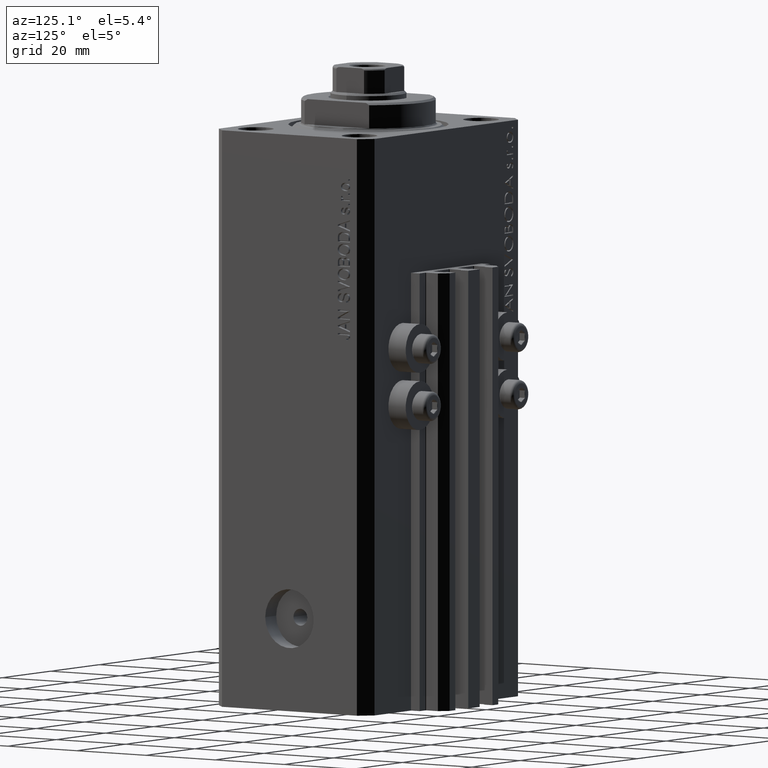
[diagram: clean part render]
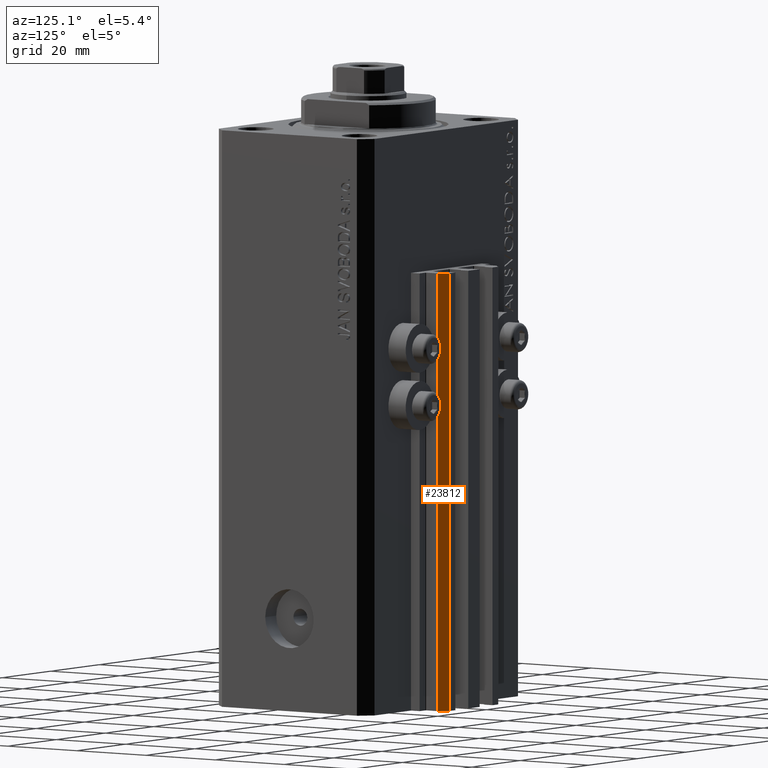
[diagram: same view with one face highlighted and labeled with its STEP entity id]
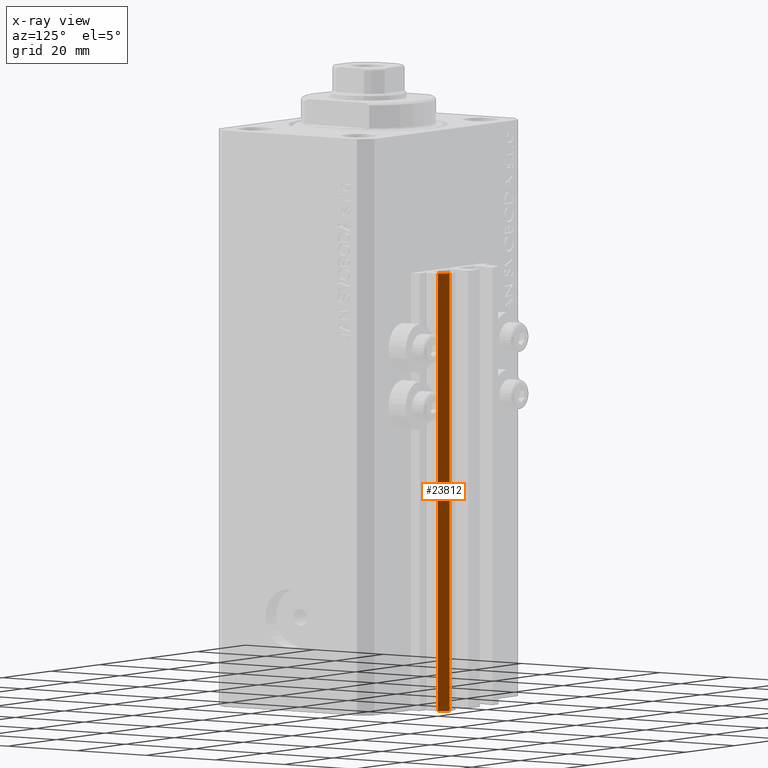
[diagram: x-ray of the same camera — body ghosted, the highlighted face saturated]
A machine part, auxiliary view. The second image highlights one B-rep face of the part: STEP entity #23812.
The next image is the same camera in x-ray: the body ghosted, the highlighted face saturated — about 0% of this face is hidden behind the body in this view.
In plain terms, the highlighted planar face has unit normal (0.7071, 0.7071, 0).
Its self-contained STEP definition (entity closure, byte-faithful):
#1428 = CARTESIAN_POINT ( 'NONE',  ( 12.00000000000000178, 28.49999999999950973, -33.00000000000000000 ) ) ;
#2090 = DIRECTION ( 'NONE',  ( -0.7071067811865507924, 0.7071067811865441310, 0.000000000000000000 ) ) ;
#2633 = VECTOR ( 'NONE', #42590, 1000.000000000000000 ) ;
#3491 = VERTEX_POINT ( 'NONE', #1428 ) ;
#3827 = EDGE_CURVE ( 'NONE', #44904, #44803, #20275, .T. ) ;
#9790 = LINE ( 'NONE', #13644, #2633 ) ;
#10026 = LINE ( 'NONE', #13634, #33904 ) ;
#10252 = EDGE_CURVE ( 'NONE', #44803, #31501, #23076, .T. ) ;
#10461 = CARTESIAN_POINT ( 'NONE',  ( 12.00000000000000178, 28.49999999999950973, -137.0000000000000000 ) ) ;
#11136 = DIRECTION ( 'NONE',  ( -0.7071067811865509034, 0.7071067811865441310, 0.000000000000000000 ) ) ;
#12304 = CARTESIAN_POINT ( 'NONE',  ( 9.999999999999994671, 30.49999999999949551, -137.0000000000000000 ) ) ;
#13634 = CARTESIAN_POINT ( 'NONE',  ( 12.00000000000000178, 28.49999999999950973, -137.0000000000000000 ) ) ;
#13644 = CARTESIAN_POINT ( 'NONE',  ( 12.00000000000000178, 28.49999999999950973, -33.00000000000000000 ) ) ;
#14498 = DIRECTION ( 'NONE',  ( 0.7071067811865441310, 0.7071067811865509034, -0.000000000000000000 ) ) ;
#14605 = ORIENTED_EDGE ( 'NONE', *, *, #28100, .F. ) ;
#15198 = DIRECTION ( 'NONE',  ( 0.000000000000000000, 0.000000000000000000, 1.000000000000000000 ) ) ;
#15203 = PLANE ( 'NONE',  #44632 ) ;
#20275 = LINE ( 'NONE', #34883, #38926 ) ;
#20599 = ORIENTED_EDGE ( 'NONE', *, *, #44523, .F. ) ;
#21472 = ORIENTED_EDGE ( 'NONE', *, *, #10252, .T. ) ;
#21673 = FACE_OUTER_BOUND ( 'NONE', #30117, .T. ) ;
#23076 = LINE ( 'NONE', #12304, #26112 ) ;
#23650 = CARTESIAN_POINT ( 'NONE',  ( 9.999999999999994671, 30.49999999999949551, -137.0000000000000000 ) ) ;
#23812 = ADVANCED_FACE ( 'NONE', ( #21673 ), #15203, .T. ) ;
#26112 = VECTOR ( 'NONE', #15198, 1000.000000000000000 ) ;
#28100 = EDGE_CURVE ( 'NONE', #44904, #3491, #10026, .T. ) ;
#29348 = CARTESIAN_POINT ( 'NONE',  ( 9.999999999999994671, 30.49999999999949551, -33.00000000000000000 ) ) ;
#30117 = EDGE_LOOP ( 'NONE', ( #20599, #14605, #41124, #21472 ) ) ;
#31501 = VERTEX_POINT ( 'NONE', #29348 ) ;
#32698 = CARTESIAN_POINT ( 'NONE',  ( 12.00000000000000178, 28.49999999999950973, -137.0000000000000000 ) ) ;
#33904 = VECTOR ( 'NONE', #39247, 1000.000000000000000 ) ;
#34883 = CARTESIAN_POINT ( 'NONE',  ( 12.00000000000000178, 28.49999999999950973, -137.0000000000000000 ) ) ;
#38926 = VECTOR ( 'NONE', #2090, 1000.000000000000000 ) ;
#39247 = DIRECTION ( 'NONE',  ( 0.000000000000000000, 0.000000000000000000, 1.000000000000000000 ) ) ;
#41124 = ORIENTED_EDGE ( 'NONE', *, *, #3827, .T. ) ;
#42590 = DIRECTION ( 'NONE',  ( -0.7071067811865507924, 0.7071067811865441310, 0.000000000000000000 ) ) ;
#44523 = EDGE_CURVE ( 'NONE', #3491, #31501, #9790, .T. ) ;
#44632 = AXIS2_PLACEMENT_3D ( 'NONE', #32698, #14498, #11136 ) ;
#44803 = VERTEX_POINT ( 'NONE', #23650 ) ;
#44904 = VERTEX_POINT ( 'NONE', #10461 ) ;